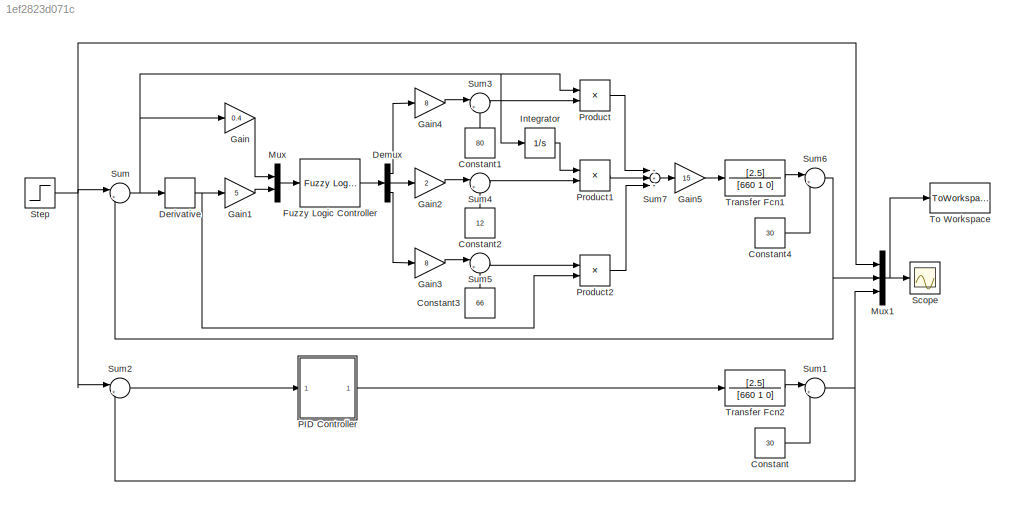
MODEL slx_1ef2823d071c
KIND model
CONFIG AbsTol = auto
CONFIG EnableMultiTasking = off
CONFIG FixedStep = auto
CONFIG MaxStep = auto
CONFIG MinStep = auto
CONFIG RelTol = 1e-3
CONFIG SampleTimeConstraint = Unconstrained
CONFIG Solver = VariableStepAuto
CONFIG SolverName = VariableStepAuto
CONFIG StartTime = 0.0
CONFIG StopTime = 60
BLOCK [Constant] Constant
  Value = 30
BLOCK [Constant] Constant1
  Value = 80
BLOCK [Constant] Constant2
  Value = 12
BLOCK [Constant] Constant3
  Value = 66
BLOCK [Constant] Constant4
  Value = 30
BLOCK [Demux] Demux
  DisplayOption = bar
  Outputs = 3
  Ports = [1, 3]
BLOCK [Derivative] Derivative
BLOCK [Reference] Fuzzy Logic Controller  REF=fuzblock/Fuzzy Logic   (lib defined in mdl_858b3b3e7478)
Controller
  Ports = [1, 1]
  SourceBlock = fuzblock/Fuzzy Logic \nController
  SourceType = FIS
BLOCK [Gain] Gain
  Gain = 0.4
  OutDataTypeStr = Inherit: Inherit via internal rule
  ParamDataTypeStr = Inherit: Inherit via internal rule
  SaturateOnIntegerOverflow = off
BLOCK [Gain] Gain1
  Gain = 5
  OutDataTypeStr = Inherit: Inherit via internal rule
  ParamDataTypeStr = Inherit: Inherit via internal rule
  SaturateOnIntegerOverflow = off
BLOCK [Gain] Gain2
  Gain = 2
  OutDataTypeStr = Inherit: Inherit via internal rule
  ParamDataTypeStr = Inherit: Inherit via internal rule
  SaturateOnIntegerOverflow = off
BLOCK [Gain] Gain3
  Gain = 8
  OutDataTypeStr = Inherit: Inherit via internal rule
  ParamDataTypeStr = Inherit: Inherit via internal rule
  SaturateOnIntegerOverflow = off
BLOCK [Gain] Gain4
  Gain = 8
  OutDataTypeStr = Inherit: Inherit via internal rule
  ParamDataTypeStr = Inherit: Inherit via internal rule
  SaturateOnIntegerOverflow = off
BLOCK [Gain] Gain5
  Gain = 15
  OutDataTypeStr = Inherit: Inherit via internal rule
  ParamDataTypeStr = Inherit: Inherit via internal rule
  SaturateOnIntegerOverflow = off
BLOCK [Integrator] Integrator
  Ports = [1, 1]
BLOCK [Mux] Mux
  DisplayOption = bar
  Inputs = 2
  Ports = [2, 1]
BLOCK [Mux] Mux1
  DisplayOption = bar
  Inputs = 3
  Ports = [3, 1]
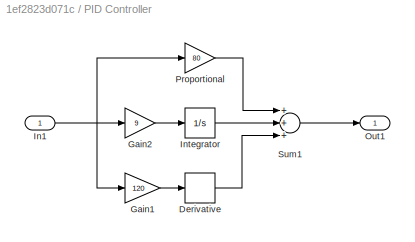
BLOCK [SubSystem] PID Controller
  Ports = [1, 1]
  RequestExecContextInheritance = off
  Variant = off
BLOCK [Derivative] PID Controller/Derivative
BLOCK [Gain] PID Controller/Gain1
  Gain = 120
  OutDataTypeStr = Inherit: Inherit via internal rule
  ParamDataTypeStr = Inherit: Inherit via internal rule
  SaturateOnIntegerOverflow = off
BLOCK [Gain] PID Controller/Gain2
  Gain = 9
  OutDataTypeStr = Inherit: Inherit via internal rule
  ParamDataTypeStr = Inherit: Inherit via internal rule
  SaturateOnIntegerOverflow = off
BLOCK [Inport] PID Controller/In1
  IconDisplay = Port number
BLOCK [Integrator] PID Controller/Integrator
  Ports = [1, 1]
BLOCK [Outport] PID Controller/Out1
  IconDisplay = Port number
BLOCK [Gain] PID Controller/Proportional
  Gain = 80
  OutDataTypeStr = Inherit: Inherit via internal rule
  ParamDataTypeStr = Inherit: Inherit via internal rule
  SaturateOnIntegerOverflow = off
BLOCK [Sum] PID Controller/Sum1
  InputSameDT = off
  Inputs = +++
  OutDataTypeStr = Inherit: Inherit via internal rule
  Ports = [3, 1]
  SaturateOnIntegerOverflow = off
BLOCK [Product] Product
  InputSameDT = off
  OutDataTypeStr = Inherit: Inherit via internal rule
  Ports = [2, 1]
  RndMeth = Floor
  SaturateOnIntegerOverflow = off
BLOCK [Product] Product1
  InputSameDT = off
  OutDataTypeStr = Inherit: Inherit via internal rule
  Ports = [2, 1]
  RndMeth = Floor
  SaturateOnIntegerOverflow = off
BLOCK [Product] Product2
  InputSameDT = off
  OutDataTypeStr = Inherit: Inherit via internal rule
  Ports = [2, 1]
  RndMeth = Floor
  SaturateOnIntegerOverflow = off
BLOCK [Scope] Scope
  NumInputPorts = 1
  Ports = [1]
  ScopeSpecificationString = Simulink.scopes.TimeScopeBlockCfg('CurrentConfiguration', extmgr.ConfigurationSet(extmgr.Configuration('Core','General UI',true,'FigureColor',[0.972549019607843 0.972549019607843 0.972549019607843]),extmgr.Configuration('Core','Source UI',true),extmgr.Configuration('Sources','WiredSimulink',true,'DataLoggingLimitDataPoints',true,'DataLoggingSaveFormat','Array','DataLoggingDecimation','1','DataLogg...<+1878ch>
BLOCK [Step] Step
  After = 50
  Before = 30
  SampleTime = 0
  Time = 0
BLOCK [Sum] Sum
  IconShape = round
  InputSameDT = off
  Inputs = |+-
  OutDataTypeStr = Inherit: Inherit via internal rule
  Ports = [2, 1]
  SaturateOnIntegerOverflow = off
BLOCK [Sum] Sum1
  IconShape = round
  InputSameDT = off
  Inputs = |++
  OutDataTypeStr = Inherit: Inherit via internal rule
  Ports = [2, 1]
  SaturateOnIntegerOverflow = off
BLOCK [Sum] Sum2
  IconShape = round
  InputSameDT = off
  Inputs = |+-
  OutDataTypeStr = Inherit: Inherit via internal rule
  Ports = [2, 1]
  SaturateOnIntegerOverflow = off
BLOCK [Sum] Sum3
  IconShape = round
  InputSameDT = off
  Inputs = |++
  OutDataTypeStr = Inherit: Inherit via internal rule
  Ports = [2, 1]
  SaturateOnIntegerOverflow = off
BLOCK [Sum] Sum4
  IconShape = round
  InputSameDT = off
  Inputs = |++
  OutDataTypeStr = Inherit: Inherit via internal rule
  Ports = [2, 1]
  SaturateOnIntegerOverflow = off
BLOCK [Sum] Sum5
  IconShape = round
  InputSameDT = off
  Inputs = |++
  OutDataTypeStr = Inherit: Inherit via internal rule
  Ports = [2, 1]
  SaturateOnIntegerOverflow = off
BLOCK [Sum] Sum6
  IconShape = round
  InputSameDT = off
  Inputs = |++
  OutDataTypeStr = Inherit: Inherit via internal rule
  Ports = [2, 1]
  SaturateOnIntegerOverflow = off
BLOCK [Sum] Sum7
  InputSameDT = off
  Inputs = +++
  OutDataTypeStr = Inherit: Inherit via internal rule
  Ports = [3, 1]
  SaturateOnIntegerOverflow = off
BLOCK [ToWorkspace] To Workspace
  Decimation = 3
  FixptAsFi = on
  MaxDataPoints = inf
  Ports = [1]
  SampleTime = -1
  Save2DSignal = 3-D array (concatenate along third dimension)
  SaveFormat = Timeseries
  VariableName = simout
BLOCK [TransferFcn] Transfer Fcn1
  Denominator = [660 1 0]
  Numerator = [2.5]
BLOCK [TransferFcn] Transfer Fcn2
  Denominator = [660 1 0]
  Numerator = [2.5]
LINE Constant1:1 -> Sum3:2
LINE Constant2:1 -> Sum4:2
LINE Constant3:1 -> Sum5:2
LINE Constant4:1 -> Sum6:2
LINE Constant:1 -> Sum1:2
LINE Demux:1 -> Gain4:1
LINE Demux:2 -> Gain2:1
LINE Demux:3 -> Gain3:1
NET Derivative:1 -> Gain1:1, Product2:2
LINE Fuzzy Logic Controller:1 -> Demux:1
LINE Gain1:1 -> Mux:2
LINE Gain2:1 -> Sum4:1
LINE Gain3:1 -> Sum5:1
LINE Gain4:1 -> Sum3:1
LINE Gain5:1 -> Transfer Fcn1:1
LINE Gain:1 -> Mux:1
LINE Integrator:1 -> Product1:1
NET Mux1:1 -> Scope:1, To Workspace:1
LINE Mux:1 -> Fuzzy Logic Controller:1
LINE PID Controller/Derivative:1 -> PID Controller/Sum1:3
LINE PID Controller/Gain1:1 -> PID Controller/Derivative:1
LINE PID Controller/Gain2:1 -> PID Controller/Integrator:1
NET PID Controller/In1:1 -> PID Controller/Gain1:1, PID Controller/Gain2:1, PID Controller/Proportional:1
LINE PID Controller/Integrator:1 -> PID Controller/Sum1:2
LINE PID Controller/Proportional:1 -> PID Controller/Sum1:1
LINE PID Controller/Sum1:1 -> PID Controller/Out1:1
LINE PID Controller:1 -> Transfer Fcn2:1
LINE Product1:1 -> Sum7:2
LINE Product2:1 -> Sum7:3
LINE Product:1 -> Sum7:1
NET Step:1 -> Mux1:1, Sum2:1, Sum:1
NET Sum1:1 -> Mux1:3, Sum2:2
LINE Sum2:1 -> PID Controller:1
LINE Sum3:1 -> Product:2
LINE Sum4:1 -> Product1:2
LINE Sum5:1 -> Product2:1
NET Sum6:1 -> Mux1:2, Sum:2
LINE Sum7:1 -> Gain5:1
NET Sum:1 -> Derivative:1, Gain:1, Integrator:1, Product:1
LINE Transfer Fcn1:1 -> Sum6:1
LINE Transfer Fcn2:1 -> Sum1:1
note: NET lines group one-source signal fan-out (src -> all destinations, sorted); 1:1 wires keep LINE
